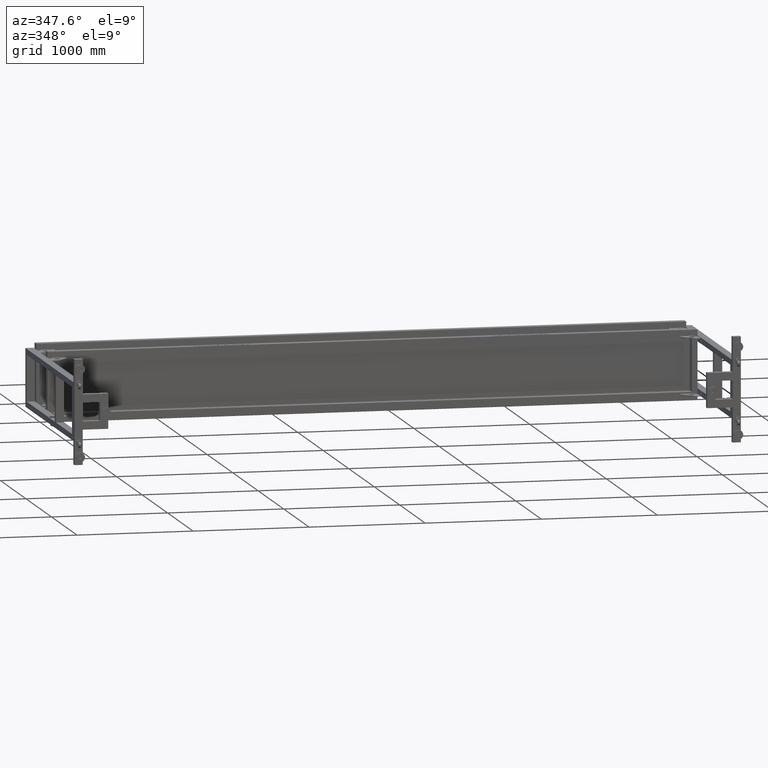
[diagram: clean part render]
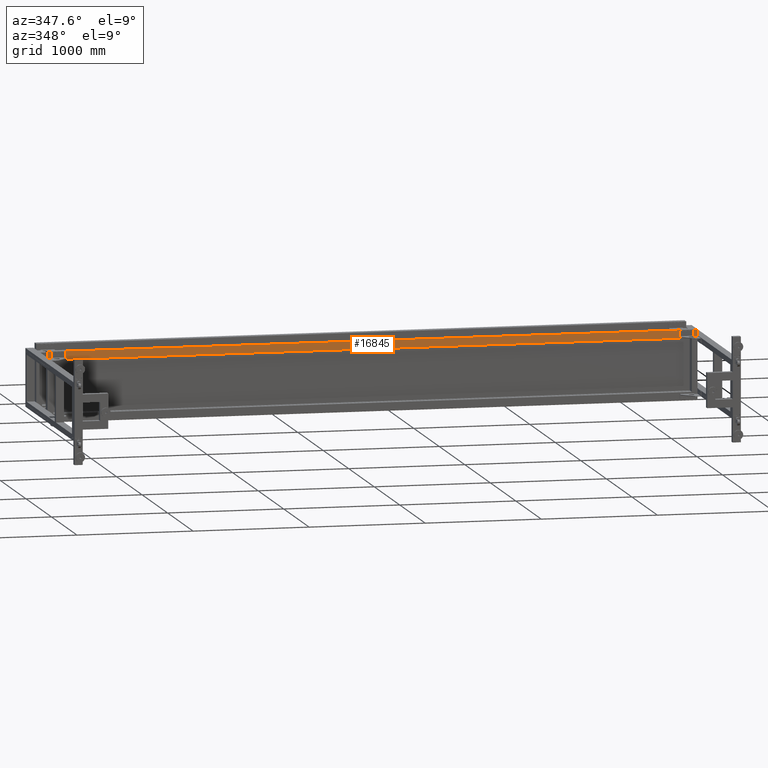
[diagram: same view with one face highlighted and labeled with its STEP entity id]
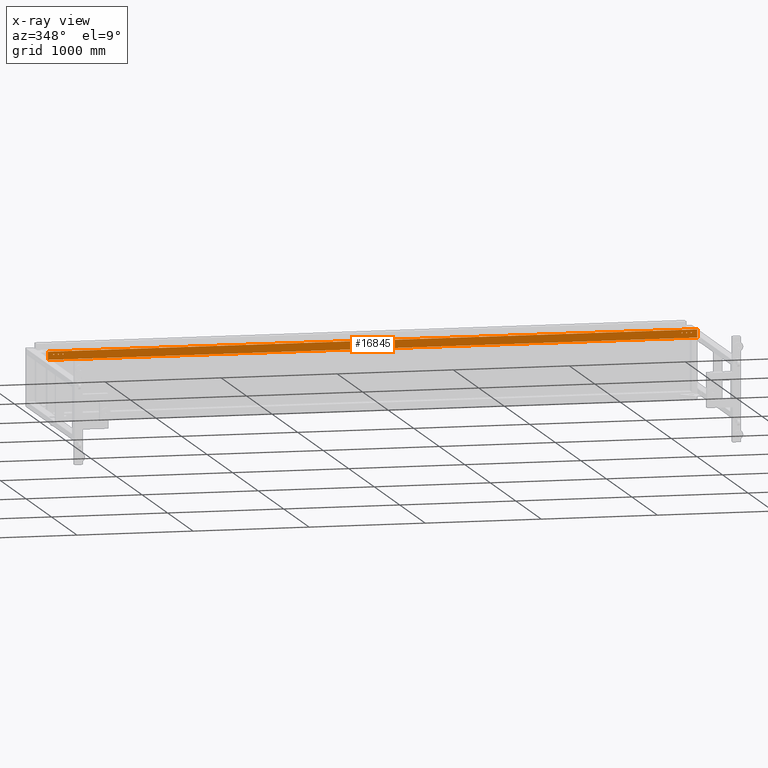
[diagram: x-ray of the same camera — body ghosted, the highlighted face saturated]
A machine part, auxiliary view. The second image highlights one B-rep face of the part: STEP entity #16845.
The next image is the same camera in x-ray: the body ghosted, the highlighted face saturated — about 0% of this face is hidden behind the body in this view.
In plain terms, the highlighted planar face has unit normal (0, 1, 0).
Its self-contained STEP definition (entity closure, byte-faithful):
#324 = AXIS2_PLACEMENT_3D ( 'NONE', #114960, #106401, #23087 ) ;
#1088 = DIRECTION ( 'NONE',  ( 0.000000000000000000, 2.999999999999999839E-15, -1.000000000000000000 ) ) ;
#2233 = DIRECTION ( 'NONE',  ( -3.178231158697545349E-16, 1.000000000000000000, 2.999999999999999839E-15 ) ) ;
#3061 = CIRCLE ( 'NONE', #59336, 4.499999999999948486 ) ;
#3276 = ORIENTED_EDGE ( 'NONE', *, *, #48130, .T. ) ;
#3582 = VERTEX_POINT ( 'NONE', #38771 ) ;
#4219 = CARTESIAN_POINT ( 'NONE',  ( -1214.672487437185964, 486.9410804020108117, 274.9999999999998863 ) ) ;
#4740 = EDGE_LOOP ( 'NONE', ( #97279, #114810 ) ) ;
#6060 = AXIS2_PLACEMENT_3D ( 'NONE', #62206, #7551, #100587 ) ;
#6116 = AXIS2_PLACEMENT_3D ( 'NONE', #4219, #88628, #97872 ) ;
#6308 = FACE_BOUND ( 'NONE', #90703, .T. ) ;
#6345 = EDGE_CURVE ( 'NONE', #40448, #71060, #109637, .T. ) ;
#6685 = AXIS2_PLACEMENT_3D ( 'NONE', #101599, #37188, #9173 ) ;
#7020 = CARTESIAN_POINT ( 'NONE',  ( -1219.172487437186192, 486.9410804020108117, 274.9999999999998863 ) ) ;
#7403 = CARTESIAN_POINT ( 'NONE',  ( -1130.172487437186192, 486.9410804020108117, 274.9999999999998863 ) ) ;
#7551 = DIRECTION ( 'NONE',  ( 0.000000000000000000, -1.000000000000000000, -2.999999999999999839E-15 ) ) ;
#8029 = CARTESIAN_POINT ( 'NONE',  ( 4238.327512562815173, 486.9410804020117212, 274.9999999999998863 ) ) ;
#8363 = EDGE_CURVE ( 'NONE', #99857, #14884, #62385, .T. ) ;
#8372 = EDGE_CURVE ( 'NONE', #93510, #64083, #43102, .T. ) ;
#8563 = AXIS2_PLACEMENT_3D ( 'NONE', #100176, #80615, #16861 ) ;
#9173 = DIRECTION ( 'NONE',  ( 1.000000000000000000, 0.000000000000000000, 0.000000000000000000 ) ) ;
#10288 = VERTEX_POINT ( 'NONE', #31044 ) ;
#11005 = CARTESIAN_POINT ( 'NONE',  ( 4329.827512562815173, 486.9410804020118917, 229.9999999999998295 ) ) ;
#13229 = CARTESIAN_POINT ( 'NONE',  ( -1266.172487437185964, 486.9410804020109822, 229.9999999999998295 ) ) ;
#14281 = FACE_BOUND ( 'NONE', #77090, .T. ) ;
#14884 = VERTEX_POINT ( 'NONE', #17355 ) ;
#16443 = CIRCLE ( 'NONE', #6685, 4.500000000000170530 ) ;
#16845 = ADVANCED_FACE ( 'NONE', ( #99374, #6308, #14281, #53735, #81630, #61591, #118843 ), #35555, .F. ) ;
#16861 = DIRECTION ( 'NONE',  ( 1.000000000000000000, 0.000000000000000000, 0.000000000000000000 ) ) ;
#17355 = CARTESIAN_POINT ( 'NONE',  ( 4273.827512562816082, 486.9410804020117212, 274.9999999999998863 ) ) ;
#18109 = VECTOR ( 'NONE', #73469, 1000.000000000000000 ) ;
#18244 = EDGE_CURVE ( 'NONE', #14884, #99857, #26038, .T. ) ;
#18965 = ORIENTED_EDGE ( 'NONE', *, *, #8372, .F. ) ;
#19555 = AXIS2_PLACEMENT_3D ( 'NONE', #92849, #2233, #84860 ) ;
#22205 = VERTEX_POINT ( 'NONE', #80531 ) ;
#23087 = DIRECTION ( 'NONE',  ( 1.000000000000000000, 0.000000000000000000, 0.000000000000000000 ) ) ;
#23555 = CIRCLE ( 'NONE', #6060, 4.499999999999948486 ) ;
#23566 = EDGE_CURVE ( 'NONE', #10288, #119854, #36570, .T. ) ;
#24882 = CIRCLE ( 'NONE', #65569, 4.499999999999948486 ) ;
#25557 = EDGE_CURVE ( 'NONE', #119854, #71060, #59383, .T. ) ;
#26038 = CIRCLE ( 'NONE', #43619, 4.500000000000170530 ) ;
#26107 = EDGE_CURVE ( 'NONE', #10288, #40448, #88502, .T. ) ;
#26499 = ORIENTED_EDGE ( 'NONE', *, *, #8363, .T. ) ;
#26884 = DIRECTION ( 'NONE',  ( -3.178231158697545349E-16, 1.000000000000000000, 2.999999999999999839E-15 ) ) ;
#27328 = DIRECTION ( 'NONE',  ( -3.178231158697545349E-16, 1.000000000000000000, 2.999999999999999839E-15 ) ) ;
#28190 = DIRECTION ( 'NONE',  ( 1.365026013856678295E-16, 1.000000000000000000, 2.999999999999999839E-15 ) ) ;
#28643 = DIRECTION ( 'NONE',  ( 1.000000000000000000, 0.000000000000000000, 0.000000000000000000 ) ) ;
#29868 = ORIENTED_EDGE ( 'NONE', *, *, #56709, .F. ) ;
#30322 = AXIS2_PLACEMENT_3D ( 'NONE', #91998, #28190, #56703 ) ;
#31044 = CARTESIAN_POINT ( 'NONE',  ( 4329.827512562815173, 486.9410804020116643, 299.9999999999998863 ) ) ;
#32365 = DIRECTION ( 'NONE',  ( 0.000000000000000000, -1.000000000000000000, -2.999999999999999839E-15 ) ) ;
#32748 = EDGE_LOOP ( 'NONE', ( #101380, #18965 ) ) ;
#33202 = CARTESIAN_POINT ( 'NONE',  ( -1266.172487437185964, 486.9410804020109822, 229.9999999999998295 ) ) ;
#34128 = CARTESIAN_POINT ( 'NONE',  ( 4282.827512562815173, 486.9410804020117212, 274.9999999999998863 ) ) ;
#35012 = VERTEX_POINT ( 'NONE', #64115 ) ;
#35555 = PLANE ( 'NONE',  #30322 ) ;
#36570 = LINE ( 'NONE', #46280, #18109 ) ;
#37188 = DIRECTION ( 'NONE',  ( -3.178231158697545349E-16, 1.000000000000000000, 2.999999999999999839E-15 ) ) ;
#37738 = DIRECTION ( 'NONE',  ( 0.000000000000000000, -1.000000000000000000, -2.999999999999999839E-15 ) ) ;
#38715 = CIRCLE ( 'NONE', #73467, 4.500000000000170530 ) ;
#38771 = CARTESIAN_POINT ( 'NONE',  ( 4242.827512562815173, 486.9410804020117212, 274.9999999999998863 ) ) ;
#39058 = CARTESIAN_POINT ( 'NONE',  ( -1174.672487437186192, 486.9410804020108117, 274.9999999999998863 ) ) ;
#40448 = VERTEX_POINT ( 'NONE', #63743 ) ;
#42390 = AXIS2_PLACEMENT_3D ( 'NONE', #94200, #37738, #83772 ) ;
#43102 = CIRCLE ( 'NONE', #6116, 4.499999999999948486 ) ;
#43619 = AXIS2_PLACEMENT_3D ( 'NONE', #55268, #27328, #73995 ) ;
#46280 = CARTESIAN_POINT ( 'NONE',  ( 3629.827512562815173, 486.9410804020113801, 299.9999999999998863 ) ) ;
#46343 = CARTESIAN_POINT ( 'NONE',  ( -1214.672487437185964, 486.9410804020108117, 274.9999999999998863 ) ) ;
#48130 = EDGE_CURVE ( 'NONE', #104307, #22205, #89426, .T. ) ;
#51214 = ORIENTED_EDGE ( 'NONE', *, *, #25557, .T. ) ;
#53096 = EDGE_CURVE ( 'NONE', #64083, #93510, #24882, .T. ) ;
#53735 = FACE_BOUND ( 'NONE', #59206, .T. ) ;
#55138 = ORIENTED_EDGE ( 'NONE', *, *, #112043, .F. ) ;
#55268 = CARTESIAN_POINT ( 'NONE',  ( 4278.327512562815173, 486.9410804020117212, 274.9999999999998863 ) ) ;
#56520 = ORIENTED_EDGE ( 'NONE', *, *, #18244, .T. ) ;
#56703 = DIRECTION ( 'NONE',  ( -1.000000000000000000, 1.365026013856678295E-16, 0.000000000000000000 ) ) ;
#56709 = EDGE_CURVE ( 'NONE', #66658, #97936, #23555, .T. ) ;
#59206 = EDGE_LOOP ( 'NONE', ( #3276, #85351 ) ) ;
#59336 = AXIS2_PLACEMENT_3D ( 'NONE', #120029, #32365, #78431 ) ;
#59383 = LINE ( 'NONE', #13229, #97241 ) ;
#60595 = AXIS2_PLACEMENT_3D ( 'NONE', #39058, #75915, #85702 ) ;
#61591 = FACE_BOUND ( 'NONE', #4740, .T. ) ;
#62206 = CARTESIAN_POINT ( 'NONE',  ( -1134.672487437185964, 486.9410804020108117, 274.9999999999998863 ) ) ;
#62385 = CIRCLE ( 'NONE', #324, 4.500000000000170530 ) ;
#63743 = CARTESIAN_POINT ( 'NONE',  ( 4329.827512562815173, 486.9410804020118917, 229.9999999999998295 ) ) ;
#64083 = VERTEX_POINT ( 'NONE', #111174 ) ;
#64115 = CARTESIAN_POINT ( 'NONE',  ( -1179.172487437185964, 486.9410804020108117, 274.9999999999998863 ) ) ;
#64259 = VECTOR ( 'NONE', #69659, 1000.000000000000000 ) ;
#65569 = AXIS2_PLACEMENT_3D ( 'NONE', #46343, #83275, #99224 ) ;
#66658 = VERTEX_POINT ( 'NONE', #105281 ) ;
#69160 = ORIENTED_EDGE ( 'NONE', *, *, #26107, .F. ) ;
#69659 = DIRECTION ( 'NONE',  ( -9.534693476092635663E-31, 2.999999999999999839E-15, -1.000000000000000000 ) ) ;
#71060 = VERTEX_POINT ( 'NONE', #33202 ) ;
#72375 = DIRECTION ( 'NONE',  ( -1.000000000000000000, 1.365026013856678295E-16, 0.000000000000000000 ) ) ;
#73467 = AXIS2_PLACEMENT_3D ( 'NONE', #8029, #26884, #28643 ) ;
#73469 = DIRECTION ( 'NONE',  ( -1.000000000000000000, 1.365026013856678295E-16, 0.000000000000000000 ) ) ;
#73995 = DIRECTION ( 'NONE',  ( 1.000000000000000000, 0.000000000000000000, 0.000000000000000000 ) ) ;
#75591 = EDGE_CURVE ( 'NONE', #3582, #91655, #88021, .T. ) ;
#75687 = EDGE_LOOP ( 'NONE', ( #88921, #69160, #87214, #51214 ) ) ;
#75915 = DIRECTION ( 'NONE',  ( 0.000000000000000000, -1.000000000000000000, -2.999999999999999839E-15 ) ) ;
#77090 = EDGE_LOOP ( 'NONE', ( #93667, #102649 ) ) ;
#78431 = DIRECTION ( 'NONE',  ( -1.000000000000000000, 0.000000000000000000, 0.000000000000000000 ) ) ;
#80531 = CARTESIAN_POINT ( 'NONE',  ( 4202.827512562815173, 486.9410804020117212, 274.9999999999998863 ) ) ;
#80615 = DIRECTION ( 'NONE',  ( -3.178231158697545349E-16, 1.000000000000000000, 2.999999999999999839E-15 ) ) ;
#81192 = VECTOR ( 'NONE', #72375, 1000.000000000000000 ) ;
#81630 = FACE_BOUND ( 'NONE', #32748, .T. ) ;
#83275 = DIRECTION ( 'NONE',  ( 0.000000000000000000, -1.000000000000000000, -2.999999999999999839E-15 ) ) ;
#83772 = DIRECTION ( 'NONE',  ( -1.000000000000000000, 0.000000000000000000, 0.000000000000000000 ) ) ;
#84860 = DIRECTION ( 'NONE',  ( 1.000000000000000000, 0.000000000000000000, 0.000000000000000000 ) ) ;
#85351 = ORIENTED_EDGE ( 'NONE', *, *, #111388, .T. ) ;
#85702 = DIRECTION ( 'NONE',  ( -1.000000000000000000, 0.000000000000000000, 0.000000000000000000 ) ) ;
#87214 = ORIENTED_EDGE ( 'NONE', *, *, #23566, .T. ) ;
#87354 = EDGE_CURVE ( 'NONE', #35012, #97039, #94722, .T. ) ;
#87753 = CIRCLE ( 'NONE', #60595, 4.499999999999948486 ) ;
#88021 = CIRCLE ( 'NONE', #8563, 4.500000000000170530 ) ;
#88502 = LINE ( 'NONE', #11005, #64259 ) ;
#88628 = DIRECTION ( 'NONE',  ( 0.000000000000000000, -1.000000000000000000, -2.999999999999999839E-15 ) ) ;
#88921 = ORIENTED_EDGE ( 'NONE', *, *, #6345, .F. ) ;
#89426 = CIRCLE ( 'NONE', #19555, 4.500000000000170530 ) ;
#89545 = CARTESIAN_POINT ( 'NONE',  ( -1170.172487437185964, 486.9410804020108117, 274.9999999999998863 ) ) ;
#90703 = EDGE_LOOP ( 'NONE', ( #56520, #26499 ) ) ;
#91655 = VERTEX_POINT ( 'NONE', #114934 ) ;
#91998 = CARTESIAN_POINT ( 'NONE',  ( 3629.827512562815173, 486.9410804020116075, 229.9999999999998295 ) ) ;
#92849 = CARTESIAN_POINT ( 'NONE',  ( 4198.327512562816082, 486.9410804020116643, 274.9999999999998863 ) ) ;
#93510 = VERTEX_POINT ( 'NONE', #7020 ) ;
#93667 = ORIENTED_EDGE ( 'NONE', *, *, #120057, .T. ) ;
#94200 = CARTESIAN_POINT ( 'NONE',  ( -1174.672487437186192, 486.9410804020108117, 274.9999999999998863 ) ) ;
#94722 = CIRCLE ( 'NONE', #42390, 4.499999999999948486 ) ;
#97039 = VERTEX_POINT ( 'NONE', #89545 ) ;
#97241 = VECTOR ( 'NONE', #1088, 1000.000000000000000 ) ;
#97279 = ORIENTED_EDGE ( 'NONE', *, *, #115605, .F. ) ;
#97872 = DIRECTION ( 'NONE',  ( -1.000000000000000000, 0.000000000000000000, 0.000000000000000000 ) ) ;
#97936 = VERTEX_POINT ( 'NONE', #7403 ) ;
#99224 = DIRECTION ( 'NONE',  ( -1.000000000000000000, 0.000000000000000000, 0.000000000000000000 ) ) ;
#99374 = FACE_OUTER_BOUND ( 'NONE', #75687, .T. ) ;
#99857 = VERTEX_POINT ( 'NONE', #34128 ) ;
#100176 = CARTESIAN_POINT ( 'NONE',  ( 4238.327512562815173, 486.9410804020117212, 274.9999999999998863 ) ) ;
#100587 = DIRECTION ( 'NONE',  ( -1.000000000000000000, 0.000000000000000000, 0.000000000000000000 ) ) ;
#101380 = ORIENTED_EDGE ( 'NONE', *, *, #53096, .F. ) ;
#101599 = CARTESIAN_POINT ( 'NONE',  ( 4198.327512562816082, 486.9410804020116643, 274.9999999999998863 ) ) ;
#102649 = ORIENTED_EDGE ( 'NONE', *, *, #75591, .T. ) ;
#104076 = CARTESIAN_POINT ( 'NONE',  ( 4193.827512562816082, 486.9410804020116643, 274.9999999999998863 ) ) ;
#104307 = VERTEX_POINT ( 'NONE', #104076 ) ;
#105281 = CARTESIAN_POINT ( 'NONE',  ( -1139.172487437185964, 486.9410804020108117, 274.9999999999998863 ) ) ;
#106025 = CARTESIAN_POINT ( 'NONE',  ( -1266.172487437185964, 486.9410804020108117, 299.9999999999998863 ) ) ;
#106401 = DIRECTION ( 'NONE',  ( -3.178231158697545349E-16, 1.000000000000000000, 2.999999999999999839E-15 ) ) ;
#107180 = EDGE_LOOP ( 'NONE', ( #55138, #29868 ) ) ;
#109637 = LINE ( 'NONE', #117575, #81192 ) ;
#111174 = CARTESIAN_POINT ( 'NONE',  ( -1210.172487437185964, 486.9410804020108117, 274.9999999999998863 ) ) ;
#111388 = EDGE_CURVE ( 'NONE', #22205, #104307, #16443, .T. ) ;
#112043 = EDGE_CURVE ( 'NONE', #97936, #66658, #3061, .T. ) ;
#114810 = ORIENTED_EDGE ( 'NONE', *, *, #87354, .F. ) ;
#114934 = CARTESIAN_POINT ( 'NONE',  ( 4233.827512562815173, 486.9410804020117212, 274.9999999999998863 ) ) ;
#114960 = CARTESIAN_POINT ( 'NONE',  ( 4278.327512562815173, 486.9410804020117212, 274.9999999999998863 ) ) ;
#115605 = EDGE_CURVE ( 'NONE', #97039, #35012, #87753, .T. ) ;
#117575 = CARTESIAN_POINT ( 'NONE',  ( 3629.827512562815173, 486.9410804020116075, 229.9999999999998295 ) ) ;
#118843 = FACE_BOUND ( 'NONE', #107180, .T. ) ;
#119854 = VERTEX_POINT ( 'NONE', #106025 ) ;
#120029 = CARTESIAN_POINT ( 'NONE',  ( -1134.672487437185964, 486.9410804020108117, 274.9999999999998863 ) ) ;
#120057 = EDGE_CURVE ( 'NONE', #91655, #3582, #38715, .T. ) ;